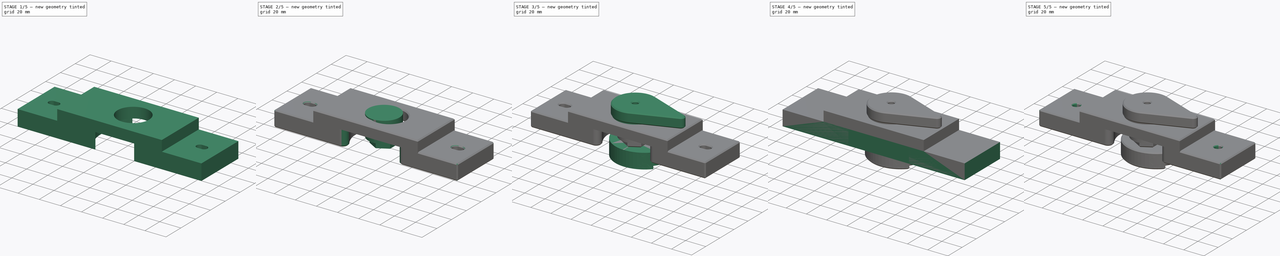
[diagram: build sequence overview — one tinted view per stage of 5, left to right]
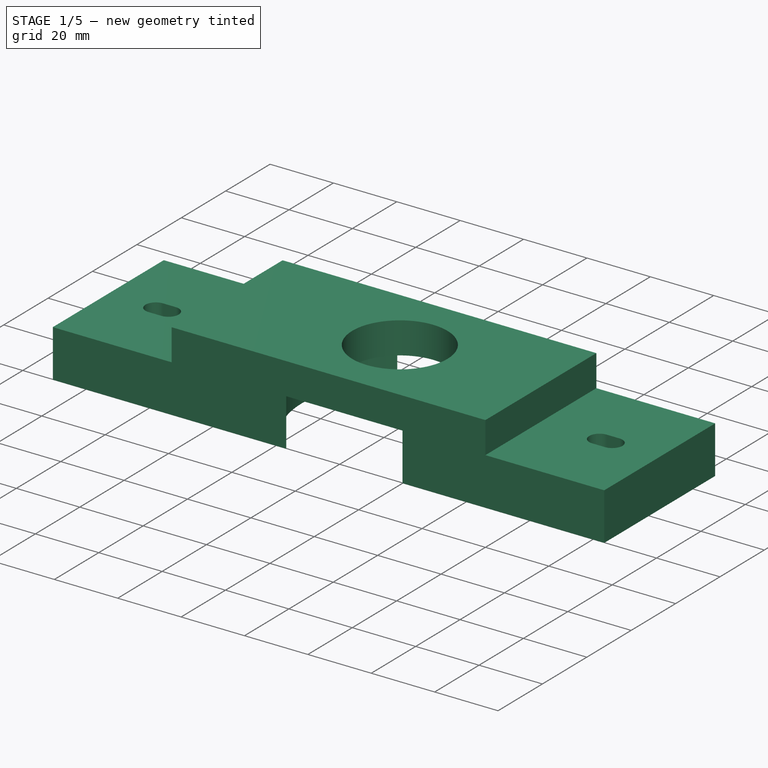
[diagram: stage 1 of 5 — iso view after this stage's code; geometry added in this stage tinted green]
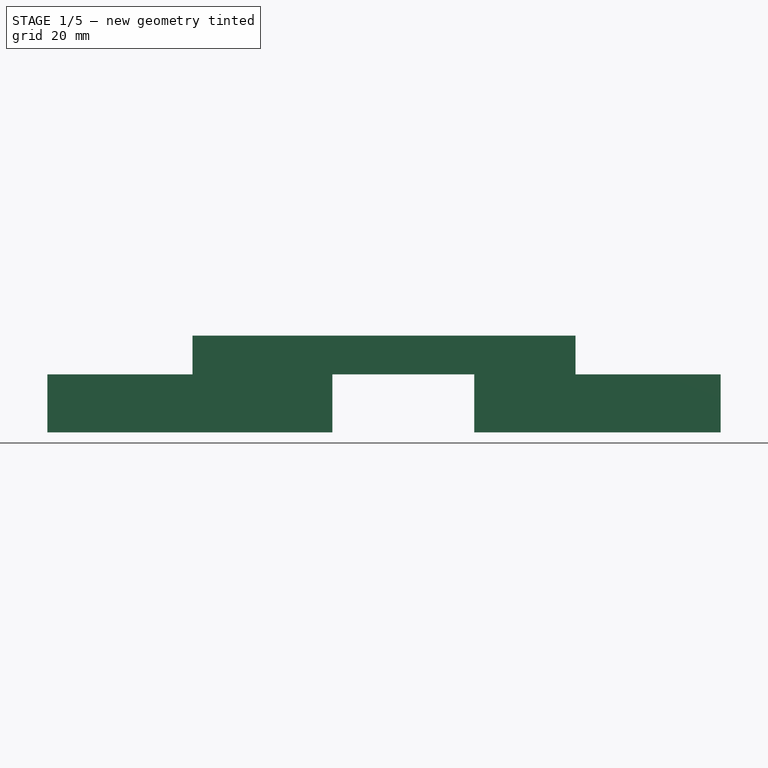
[diagram: stage 1 of 5 — front view after this stage's code; geometry added in this stage tinted green]
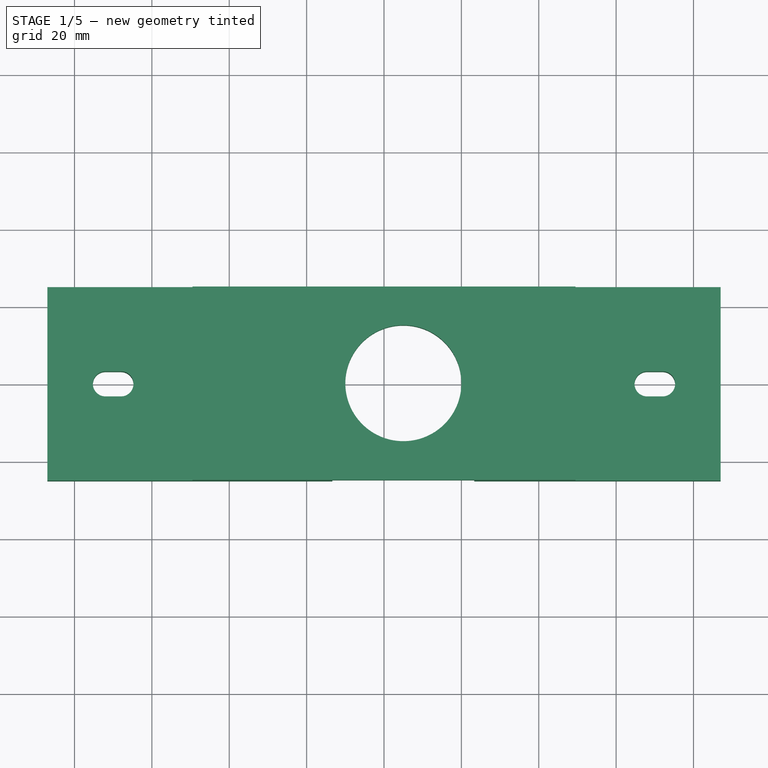
[diagram: stage 1 of 5 — top view after this stage's code; geometry added in this stage tinted green]
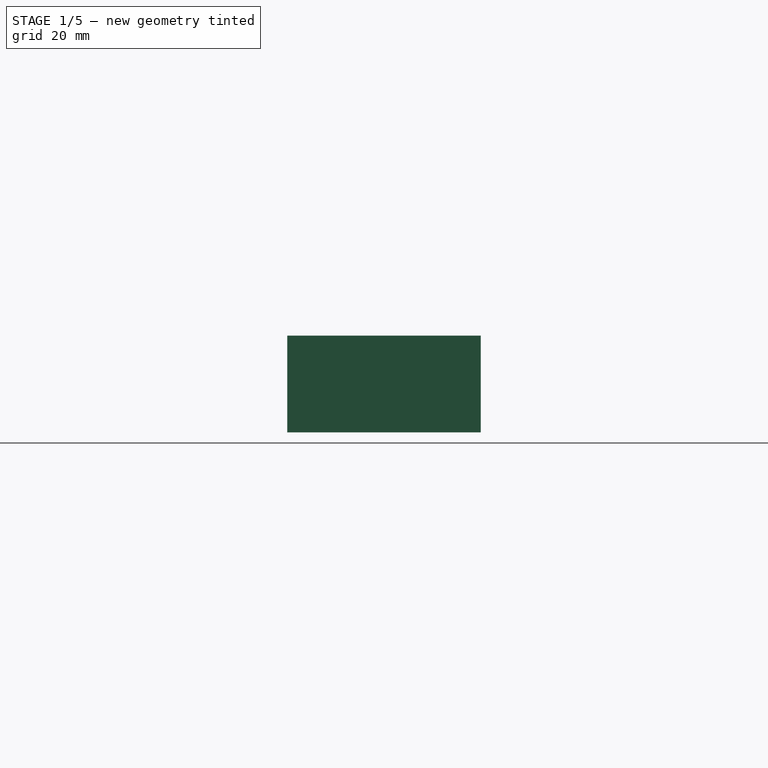
[diagram: stage 1 of 5 — right view after this stage's code; geometry added in this stage tinted green]
FCSTD DOCUMENT  (FreeCAD 0.22R36117 (Git))
Label: tenoning jig 2
License: All rights reserved
LicenseURL: http://en.wikipedia.org/wiki/All_rights_reserved
objects: Sketcher::SketchObject×24, PartDesign::Pocket×11, PartDesign::Pad×9, PartDesign::Chamfer×4, PartDesign::Body×4, PartDesign::Fillet×2
note: 80 computed .brp shape members not serialized (recipe doc carries the construction recipe); baked Part::Feature solids carry a one-line shape summary decoded from their .brp

FEATURE [PartDesign::Body] Body002  label="lever"
  Group = -> [Sketch008,Pad003,Sketch009,Pad004,Sketch010,Pad005,Sketch011,Pocket004,Chamfer001,Sketch025,Pad012]
  Origin = -> Origin002
  Placement = pos=(0,12,0) rot=(0,0,1;0rad)
  Tip = -> Pad012
FEATURE [Sketcher::SketchObject] Sketch026  label="base001"
  FullyConstrained = true
  MapMode = 5
  Support = -> [XY_Plane003]
  sketch-geometry (27):
    g0: LineSegment StartX=-90 StartY=125 StartZ=0 EndX=-90 EndY=-125 EndZ=0
    g1: LineSegment StartX=-90 StartY=-125 StartZ=0 EndX=90 EndY=-125 EndZ=0
    g2: LineSegment StartX=90 StartY=-125 StartZ=0 EndX=90 EndY=125 EndZ=0
    g3: LineSegment StartX=90 StartY=125 StartZ=0 EndX=-90 EndY=125 EndZ=0
    g4: LineSegment StartX=-50 StartY=85 StartZ=0 EndX=-50 EndY=-85 EndZ=0
    g5: LineSegment StartX=-50 StartY=-85 StartZ=0 EndX=50 EndY=-85 EndZ=0
    g6: LineSegment StartX=50 StartY=-85 StartZ=0 EndX=50 EndY=85 EndZ=0
    g7: LineSegment StartX=50 StartY=85 StartZ=0 EndX=-50 EndY=85 EndZ=0
    g8: LineSegment StartX=66.7 StartY=40 StartZ=0 EndX=66.7 EndY=-85 EndZ=0
    g9: LineSegment StartX=66.7 StartY=-85 StartZ=0 EndX=73.3 EndY=-85 EndZ=0
    g10: LineSegment StartX=73.3 StartY=-85 StartZ=0 EndX=73.3 EndY=40 EndZ=0
    g11: LineSegment StartX=73.3 StartY=40 StartZ=0 EndX=66.7 EndY=40 EndZ=0
    g12: GeomPoint X=70 Y=-105 Z=0
    g13: GeomPoint X=70 Y=-85 Z=0
    g14: LineSegment StartX=-73.3 StartY=40 StartZ=0 EndX=-73.3 EndY=-85 EndZ=0
    g15: LineSegment StartX=-73.3 StartY=-85 StartZ=0 EndX=-66.7 EndY=-85 EndZ=0
    g16: LineSegment StartX=-66.7 StartY=-85 StartZ=0 EndX=-66.7 EndY=40 EndZ=0
    g17: LineSegment StartX=-66.7 StartY=40 StartZ=0 EndX=-73.3 EndY=40 EndZ=0
    g18: Circle CenterX=0 CenterY=-107 CenterZ=0 NormalX=0 NormalY=0 NormalZ=1 AngleXU=0 Radius=3.25
    g19: Circle CenterX=70 CenterY=105 CenterZ=0 NormalX=0 NormalY=0 NormalZ=1 AngleXU=0 Radius=3.25
    g20: Circle CenterX=-70 CenterY=105 CenterZ=0 NormalX=0 NormalY=0 NormalZ=1 AngleXU=0 Radius=3.25
    g21: Circle CenterX=70 CenterY=-105 CenterZ=0 NormalX=0 NormalY=0 NormalZ=1 AngleXU=0 Radius=3.25
    g22: Circle CenterX=-70 CenterY=-105 CenterZ=0 NormalX=0 NormalY=0 NormalZ=1 AngleXU=0 Radius=3.25
    g23: Circle CenterX=-50.8 CenterY=105 CenterZ=0 NormalX=0 NormalY=0 NormalZ=1 AngleXU=0 Radius=1.5875
    g24: Circle CenterX=50.8 CenterY=105 CenterZ=0 NormalX=0 NormalY=0 NormalZ=1 AngleXU=0 Radius=1.5875
    g25: Circle CenterX=-50.8 CenterY=-105 CenterZ=0 NormalX=0 NormalY=0 NormalZ=1 AngleXU=0 Radius=1.5875
    g26: Circle CenterX=50.8 CenterY=-105 CenterZ=0 NormalX=0 NormalY=0 NormalZ=1 AngleXU=0 Radius=1.5875
  constraints (68):
    c: Coincident(g0,g1)
    c: Coincident(g1,g2)
    c: Coincident(g2,g3)
    c: Coincident(g3,g0)
    c: Vertical(g0)
    c: Vertical(g2)
    c: Horizontal(g1)
    c: Horizontal(g3)
    c: DistanceX(g3,g3) = 180
    c: DistanceY(g2,g2) = 250
    c: Symmetric(g0,g2,g-1)
    c: Coincident(g4,g5)
    c: Coincident(g5,g6)
    c: Coincident(g6,g7)
    c: Coincident(g7,g4)
    c: Vertical(g4)
    c: Vertical(g6)
    c: Horizontal(g5)
    c: Horizontal(g7)
    c: DistanceX(g7,g7) = 100
    c: DistanceY(g6,g6) = 170
    c: Symmetric(g4,g6,g-1)
    c: Coincident(g8,g9)
    c: Coincident(g9,g10)
    c: Coincident(g10,g11)
    c: Coincident(g11,g8)
    c: Vertical(g8)
    c: Vertical(g10)
    c: Horizontal(g9)
    c: Horizontal(g11)
    c: DistanceX(g9,g9) = 6.6
    c: Horizontal(g8,g5)
    c: Symmetric(g5,g1,g12)
    c: Symmetric(g8,g9,g13)
    c: Vertical(g13,g12)
    c: DistanceY(g-1,g8) = 40
    c: Coincident(g14,g15)
    c: Coincident(g15,g16)
    c: Coincident(g16,g17)
    c: Coincident(g17,g14)
    c: Vertical(g14)
    c: Vertical(g16)
    c: Horizontal(g15)
    c: Horizontal(g17)
    c: Equal(g15,g11)
    c: Symmetric(g16,g8,g-2)
    c: Equal(g16,g8)
    c: PointOnObject(g18,g-2)
    c: Diameter(g18) = 6.5
    c: DistanceY(g1,g18) = 18
    c: Coincident(g21,g12)
    c: Diameter(g20) = 6.5
    c: Equal(g20,g19)
    c: Equal(g19,g21)
    c: Equal(g21,g22)
    c: Symmetric(g0,g4,g22)
    c: Symmetric(g0,g4,g20)
    c: Symmetric(g2,g6,g19)
    c: Equal(g23,g24)
    c: Diameter(g23) = 3.175
    c: Symmetric(g23,g24,g-2)
    c: DistanceX(g23,g24) = 101.6
    c: Equal(g24,g25)
    c: Equal(g25,g26)
    c: Symmetric(g25,g26,g-2)
    c: Vertical(g25,g23)
    c: Horizontal(g20,g23)
    c: Horizontal(g25,g22)
FEATURE [Sketcher::SketchObject] Sketch027  label="riser001"
  ExternalGeometry = -> [Sketch026]
  FullyConstrained = true
  MapMode = 5
  Support = -> [XY_Plane003]
  sketch-geometry (8):
    g0: LineSegment StartX=-90 StartY=125 StartZ=0 EndX=-90 EndY=85 EndZ=0
    g1: LineSegment StartX=-90 StartY=85 StartZ=0 EndX=90 EndY=85 EndZ=0
    g2: LineSegment StartX=90 StartY=85 StartZ=0 EndX=90 EndY=125 EndZ=0
    g3: LineSegment StartX=90 StartY=125 StartZ=0 EndX=-90 EndY=125 EndZ=0
    g4: Circle CenterX=-70 CenterY=105 CenterZ=0 NormalX=0 NormalY=0 NormalZ=1 AngleXU=0 Radius=3.25
    g5: Circle CenterX=70 CenterY=105 CenterZ=0 NormalX=0 NormalY=0 NormalZ=1 AngleXU=0 Radius=3.25
    g6: Circle CenterX=-50.8 CenterY=105 CenterZ=0 NormalX=0 NormalY=0 NormalZ=1 AngleXU=0 Radius=1.5875
    g7: Circle CenterX=50.8 CenterY=105 CenterZ=0 NormalX=0 NormalY=0 NormalZ=1 AngleXU=0 Radius=1.5875
  constraints (18):
    c: Coincident(g0,g1)
    c: Coincident(g1,g2)
    c: Coincident(g2,g3)
    c: Coincident(g3,g0)
    c: Vertical(g0)
    c: Vertical(g2)
    c: Horizontal(g1)
    c: Coincident(g2,g-3)
    c: Horizontal(g-4,g1)
    c: Coincident(g0,g-3)
    c: Equal(g4,g-6)
    c: Equal(g4,g5)
    c: Coincident(g4,g-6)
    c: Coincident(g5,g-5)
    c: Equal(g7,g-8)
    c: Equal(g6,g-7)
    c: Symmetric(g6,g7,g-2)
    c: Coincident(g6,g-7)
FEATURE [Sketcher::SketchObject] Sketch028
  ExternalGeometry = -> [Sketch026]
  FullyConstrained = true
  MapMode = 5
  Support = -> [XY_Plane003]
  sketch-geometry (4):
    g0: LineSegment StartX=-87 StartY=25 StartZ=0 EndX=-87 EndY=-25 EndZ=0
    g1: LineSegment StartX=-87 StartY=-25 StartZ=0 EndX=87 EndY=-25 EndZ=0
    g2: LineSegment StartX=87 StartY=-25 StartZ=0 EndX=87 EndY=25 EndZ=0
    g3: LineSegment StartX=87 StartY=25 StartZ=0 EndX=-87 EndY=25 EndZ=0
  constraints (11):
    c: Coincident(g0,g1)
    c: Coincident(g1,g2)
    c: Coincident(g2,g3)
    c: Coincident(g3,g0)
    c: Vertical(g0)
    c: Vertical(g2)
    c: Horizontal(g1)
    c: Horizontal(g3)
    c: Symmetric(g0,g2,g-1)
    c: DistanceY(g2,g2) = 50
    c: DistanceX(g1,g1) = 174
FEATURE [PartDesign::Pad] Pad013
  Direction = (0,0,1)
  Length = 15
  Length2 = 10
  Profile = -> Sketch028
  ReferenceAxis = -> Sketch028 [N_Axis]
  Suppressed = false
  Type = 0
FEATURE [Sketcher::SketchObject] Sketch029
  ExternalGeometry = -> [Sketch026,Pad013]
  FullyConstrained = true
  MapMode = 5
  Placement = pos=(0,0,15) rot=(0,0,1;0rad)
  Support = -> [Pad013]
  sketch-geometry (4):
    g0: LineSegment StartX=-49.5 StartY=25 StartZ=0 EndX=-49.5 EndY=-25 EndZ=0
    g1: LineSegment StartX=-49.5 StartY=-25 StartZ=0 EndX=49.5 EndY=-25 EndZ=0
    g2: LineSegment StartX=49.5 StartY=-25 StartZ=0 EndX=49.5 EndY=25 EndZ=0
    g3: LineSegment StartX=49.5 StartY=25 StartZ=0 EndX=-49.5 EndY=25 EndZ=0
  constraints (11):
    c: Coincident(g0,g1)
    c: Coincident(g1,g2)
    c: Coincident(g2,g3)
    c: Coincident(g3,g0)
    c: Vertical(g0)
    c: Vertical(g2)
    c: Horizontal(g1)
    c: Horizontal(g3)
    c: Horizontal(g-4,g0)
    c: Symmetric(g2,g0,g-1)
    c: DistanceX(g-3,g0) = 0.5
FEATURE [PartDesign::Pad] Pad014
  BaseFeature = -> Pad013
  Direction = (0,0,1)
  Length = 10
  Length2 = 10
  Profile = -> Sketch029
  ReferenceAxis = -> Sketch029 [N_Axis]
  Suppressed = false
  Type = 0
FEATURE [Sketcher::SketchObject] Sketch030
  FullyConstrained = true
  MapMode = 5
  Placement = pos=(0,0,25) rot=(0,0,1;0rad)
  Support = -> [Pad014]
  sketch-geometry (2):
    g0: Circle CenterX=5 CenterY=0 CenterZ=0 NormalX=0 NormalY=0 NormalZ=1 AngleXU=0 Radius=15
    g1: Circle CenterX=5 CenterY=0 CenterZ=0 NormalX=0 NormalY=0 NormalZ=1 AngleXU=0 Radius=31
  constraints (5):
    c: Diameter(g0) = 30
    c: Coincident(g1,g0)
    c: Diameter(g1) = 62
    c: DistanceY(g-1,g0) = 0
    c: DistanceX(g-1,g0) = 5
FEATURE [PartDesign::Pocket] Pocket011
  BaseFeature = -> Pad014
  Direction = (0,0,-1)
  Length = 5
  Length2 = 5
  Profile = -> Sketch030
  ReferenceAxis = -> Sketch030 [N_Axis]
  Suppressed = false
  Type = 1
FEATURE [Sketcher::SketchObject] Sketch031
  ExternalGeometry = -> [Pocket011]
  FullyConstrained = true
  MapMode = 5
  Placement = pos=(0,0,0) rot=(1,0,0;3.14159rad)
  Support = -> [Pocket011]
  sketch-geometry (1):
    g0: Circle CenterX=5 CenterY=0 CenterZ=0 NormalX=0 NormalY=0 NormalZ=1 AngleXU=0 Radius=31
  constraints (2):
    c: Coincident(g0,g-3)
    c: Diameter(g0) = 62
FEATURE [PartDesign::Pocket] Pocket012
  BaseFeature = -> Pocket011
  Direction = (0,0,1)
  Length = 15
  Length2 = 5
  Profile = -> Sketch031
  ReferenceAxis = -> Sketch031 [N_Axis]
  Suppressed = false
  Type = 0
FEATURE [Sketcher::SketchObject] Sketch032
  ExternalGeometry = -> [Sketch026]
  FullyConstrained = true
  MapMode = 5
  Placement = pos=(0,0,15) rot=(0,0,1;0rad)
  Support = -> [Pocket012]
  sketch-geometry (10):
    g0: GeomPoint X=70 Y=40 Z=0
    g1: ArcOfCircle CenterX=-72 CenterY=1e-16 CenterZ=0 NormalX=0 NormalY=0 NormalZ=1 AngleXU=0 Radius=3.25 StartAngle=1.5708 EndAngle=4.71239
    g2: ArcOfCircle CenterX=-68 CenterY=0 CenterZ=0 NormalX=0 NormalY=0 NormalZ=1 AngleXU=0 Radius=3.25 StartAngle=4.71239 EndAngle=7.85398
    g3: LineSegment StartX=-72 StartY=3.25 StartZ=0 EndX=-68 EndY=3.25 EndZ=0
    g4: LineSegment StartX=-72 StartY=-3.25 StartZ=0 EndX=-68 EndY=-3.25 EndZ=0
    g5: ArcOfCircle CenterX=68 CenterY=0 CenterZ=0 NormalX=0 NormalY=0 NormalZ=1 AngleXU=0 Radius=3.25 StartAngle=1.5708 EndAngle=4.71239
    g6: ArcOfCircle CenterX=72 CenterY=0 CenterZ=0 NormalX=0 NormalY=0 NormalZ=1 AngleXU=0 Radius=3.25 StartAngle=4.71239 EndAngle=7.85398
    g7: LineSegment StartX=68 StartY=3.25 StartZ=0 EndX=72 EndY=3.25 EndZ=0
    g8: LineSegment StartX=68 StartY=-3.25 StartZ=0 EndX=72 EndY=-3.25 EndZ=0
    g9: GeomPoint X=70 Y=0 Z=0
  constraints (21):
    c: Symmetric(g-3,g-3,g0)
    c: Tangent(g1,g3) = 1.5708
    c: Tangent(g1,g4) = -1.5708
    c: Tangent(g2,g3) = 1.5708
    c: Tangent(g2,g4) = -1.5708
    c: Equal(g1,g2)
    c: Horizontal(g3)
    c: Tangent(g5,g7) = 1.5708
    c: Tangent(g5,g8) = -1.5708
    c: Tangent(g6,g7) = 1.5708
    c: Tangent(g6,g8) = -1.5708
    c: Equal(g5,g6)
    c: Horizontal(g7)
    c: Equal(g4,g8)
    c: Equal(g5,g2)
    c: Diameter(g5) = 6.5
    c: DistanceX(g4,g4) = 4
    c: Symmetric(g6,g5,g9)
    c: Vertical(g9,g0)
    c: Symmetric(g2,g5,g-2)
    c: PointOnObject(g6,g-1)
FEATURE [PartDesign::Pocket] Pocket013
  BaseFeature = -> Pocket012
  Direction = (0,0,-1)
  Length = 5
  Length2 = 5
  Profile = -> Sketch032
  ReferenceAxis = -> Sketch032 [N_Axis]
  Suppressed = false
  Type = 1
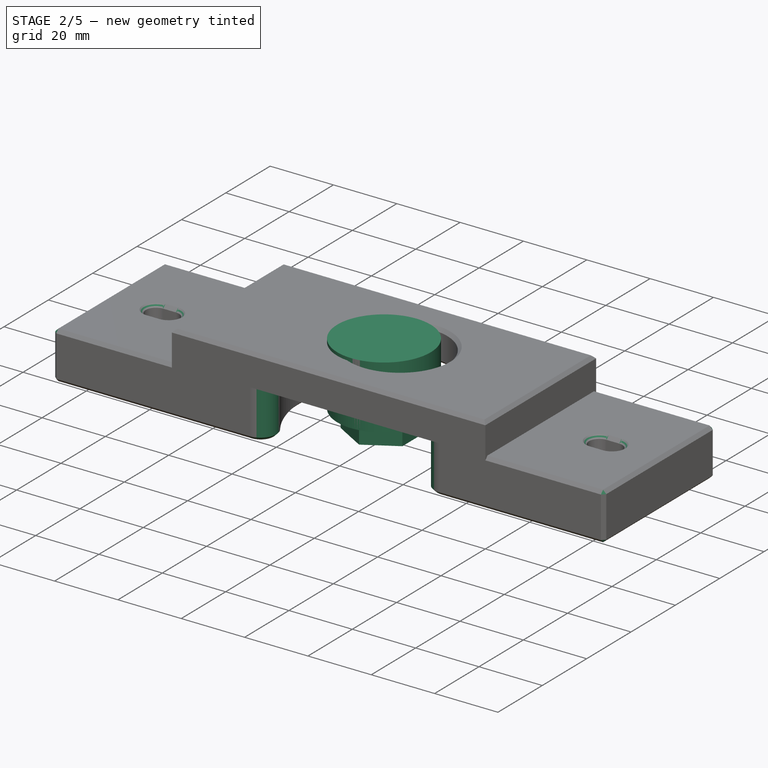
[diagram: stage 2 of 5 — iso view after this stage's code; geometry added in this stage tinted green]
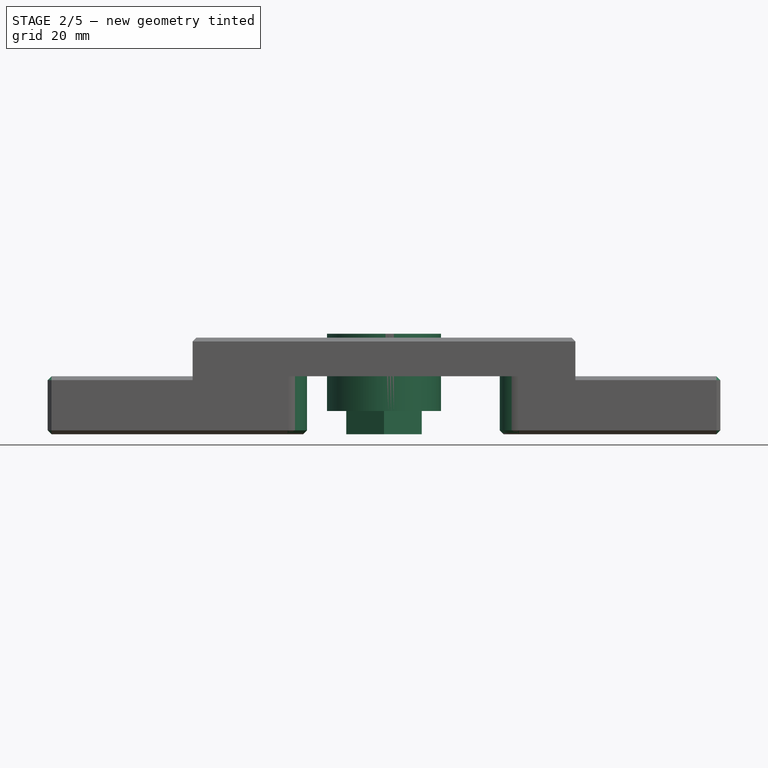
[diagram: stage 2 of 5 — front view after this stage's code; geometry added in this stage tinted green]
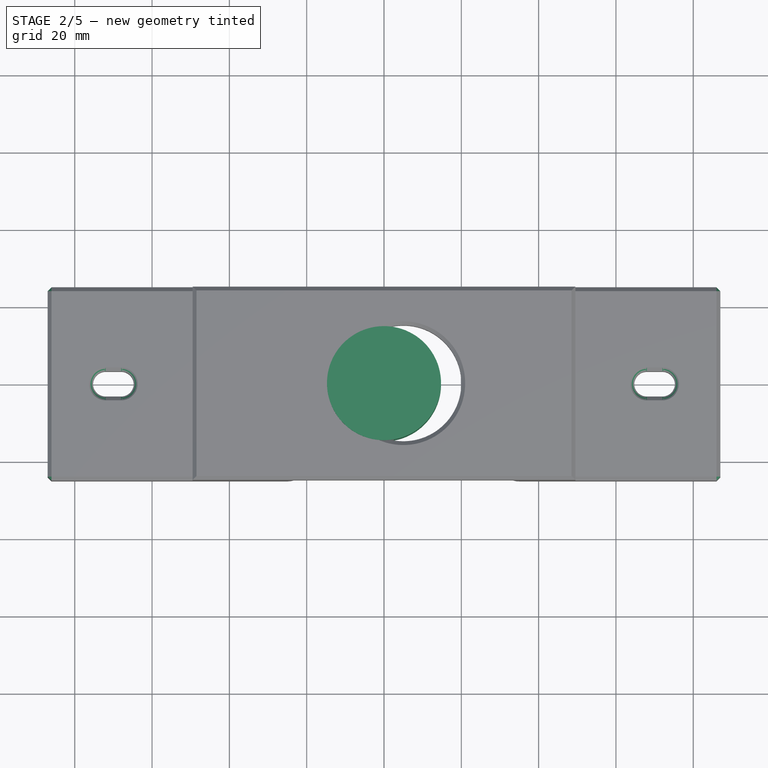
[diagram: stage 2 of 5 — top view after this stage's code; geometry added in this stage tinted green]
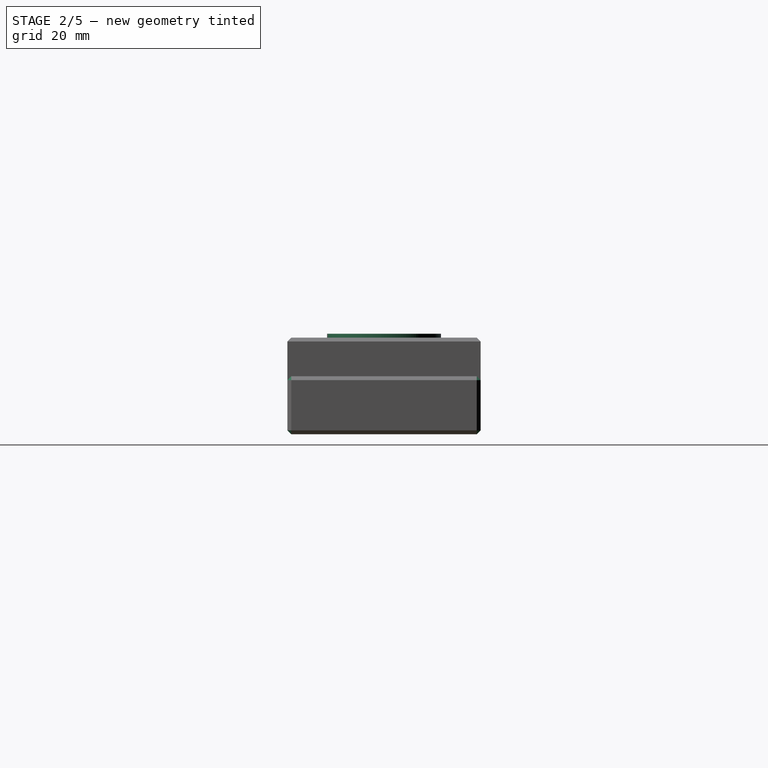
[diagram: stage 2 of 5 — right view after this stage's code; geometry added in this stage tinted green]
FEATURE [PartDesign::Body] Body  label="new carrier"
  Group = -> [Sketch,Sketch001,Sketch002,Pad,Sketch003,Pad001,Sketch004,Pocket,Sketch005,Pocket001,Sketch006,Pocket002,Sketch007,Pocket003,Fillet,Chamfer]
  Origin = -> Origin
  Tip = -> Chamfer
FEATURE [Sketcher::SketchObject] Sketch008
  FullyConstrained = true
  MapMode = 5
  Support = -> [XY_Plane002]
  sketch-geometry (7):
    g0: LineSegment StartX=0 StartY=-11.2583 StartZ=0 EndX=9.75 EndY=-5.62917 EndZ=0
    g1: LineSegment StartX=9.75 StartY=-5.62917 StartZ=0 EndX=9.75 EndY=5.62917 EndZ=0
    g2: LineSegment StartX=9.75 StartY=5.62917 StartZ=0 EndX=1.3e-15 EndY=11.2583 EndZ=0
    g3: LineSegment StartX=1.3e-15 StartY=11.2583 StartZ=0 EndX=-9.75 EndY=5.62917 EndZ=0
    g4: LineSegment StartX=-9.75 StartY=5.62917 StartZ=0 EndX=-9.75 EndY=-5.62917 EndZ=0
    g5: LineSegment StartX=-9.75 StartY=-5.62917 StartZ=0 EndX=2e-16 EndY=-11.2583 EndZ=0
    g6: Circle CenterX=0 CenterY=0 CenterZ=0 NormalX=0 NormalY=0 NormalZ=1 AngleXU=0 Radius=11.2583
  constraints (16):
    c: Coincident(g0,g1)
    c: Coincident(g1,g2)
    c: Coincident(g2,g3)
    c: Coincident(g3,g4)
    c: Coincident(g4,g5)
    c: Coincident(g5,g0)
    c: Equal(g0, g1-g5) x5
    c: PointOnObject(g0,g6)
    c: PointOnObject(g1,g6)
    c: PointOnObject(g2,g6)
    c: PointOnObject(g3,g6)
    c: PointOnObject(g4,g6)
    c: PointOnObject(g5,g6)
    c: Coincident(g6,g-1)
    c: PointOnObject(g5,g-2)
    c: DistanceX(g4,g0) = 19.5
FEATURE [PartDesign::Pad] Pad003
  Direction = (0,0,1)
  Length = 6
  Length2 = 10
  Profile = -> Sketch008
  ReferenceAxis = -> Sketch008 [N_Axis]
  Suppressed = false
  Type = 0
FEATURE [Sketcher::SketchObject] Sketch009
  FullyConstrained = true
  MapMode = 5
  Placement = pos=(0,0,6) rot=(0,0,1;0rad)
  Support = -> [Pad003]
  sketch-geometry (1):
    g0: Circle CenterX=0 CenterY=0 CenterZ=0 NormalX=0 NormalY=0 NormalZ=1 AngleXU=0 Radius=14.75
  constraints (2):
    c: Diameter(g0) = 29.5
    c: Coincident(g0,g-1)
FEATURE [PartDesign::Pad] Pad004
  BaseFeature = -> Pad003
  Direction = (0,0,1)
  Length = 20
  Length2 = 10
  Profile = -> Sketch009
  ReferenceAxis = -> Sketch009 [N_Axis]
  Suppressed = false
  Type = 0
FEATURE [Sketcher::SketchObject] Sketch033
  ExternalGeometry = -> [Pocket013]
  FullyConstrained = true
  MapMode = 5
  Placement = pos=(0,0,0) rot=(1,0,0;3.14159rad)
  Support = -> [Pocket013]
  sketch-geometry (32):
    g0: LineSegment StartX=-65.3605 StartY=-4e-16 StartZ=0 EndX=-68.6802 EndY=5.75 EndZ=0
    g1: LineSegment StartX=-68.6802 StartY=5.75 StartZ=0 EndX=-75.3198 EndY=5.75 EndZ=0
    g2: LineSegment StartX=-75.3198 StartY=5.75 StartZ=0 EndX=-78.6395 EndY=-1e-16 EndZ=0
    g3: LineSegment StartX=-78.6395 StartY=-2e-16 StartZ=0 EndX=-75.3198 EndY=-5.75 EndZ=0
    g4: LineSegment StartX=-75.3198 StartY=-5.75 StartZ=0 EndX=-68.6802 EndY=-5.75 EndZ=0
    g5: LineSegment StartX=-68.6802 StartY=-5.75 StartZ=0 EndX=-65.3605 EndY=0 EndZ=0
    g6: Circle CenterX=-72 CenterY=-1e-16 CenterZ=0 NormalX=0 NormalY=0 NormalZ=1 AngleXU=0 Radius=6.63953
    g7: LineSegment StartX=-61.3605 StartY=-9e-16 StartZ=0 EndX=-64.6802 EndY=5.75 EndZ=0
    g8: LineSegment StartX=-64.6802 StartY=5.75 StartZ=0 EndX=-71.3198 EndY=5.75 EndZ=0
    g9: LineSegment StartX=-71.3198 StartY=5.75 StartZ=0 EndX=-74.6395 EndY=-1e-16 EndZ=0
    g10: LineSegment StartX=-74.6395 StartY=-1e-16 StartZ=0 EndX=-71.3198 EndY=-5.75 EndZ=0
    g11: LineSegment StartX=-71.3198 StartY=-5.75 StartZ=0 EndX=-64.6802 EndY=-5.75 EndZ=0
    g12: LineSegment StartX=-64.6802 StartY=-5.75 StartZ=0 EndX=-61.3605 EndY=-9e-16 EndZ=0
    g13: Circle CenterX=-68 CenterY=-1e-16 CenterZ=0 NormalX=0 NormalY=0 NormalZ=1 AngleXU=0 Radius=6.63953
    g14: LineSegment StartX=74.6395 StartY=1e-16 StartZ=0 EndX=71.3198 EndY=5.75 EndZ=0
    g15: LineSegment StartX=71.3198 StartY=5.75 StartZ=0 EndX=64.6802 EndY=5.75 EndZ=0
    g16: LineSegment StartX=64.6802 StartY=5.75 StartZ=0 EndX=61.3605 EndY=-6e-16 EndZ=0
    g17: LineSegment StartX=61.3605 StartY=-6e-16 StartZ=0 EndX=64.6802 EndY=-5.75 EndZ=0
    g18: LineSegment StartX=64.6802 StartY=-5.75 StartZ=0 EndX=71.3198 EndY=-5.75 EndZ=0
    g19: LineSegment StartX=71.3198 StartY=-5.75 StartZ=0 EndX=74.6395 EndY=1e-16 EndZ=0
    g20: Circle CenterX=68 CenterY=0 CenterZ=0 NormalX=0 NormalY=0 NormalZ=1 AngleXU=0 Radius=6.63953
    g21: LineSegment StartX=78.6395 StartY=-2e-16 StartZ=0 EndX=75.3198 EndY=5.75 EndZ=0
    g22: LineSegment StartX=75.3198 StartY=5.75 StartZ=0 EndX=68.6802 EndY=5.75 EndZ=0
    g23: LineSegment StartX=68.6802 StartY=5.75 StartZ=0 EndX=65.3605 EndY=0 EndZ=0
    g24: LineSegment StartX=65.3605 StartY=0 StartZ=0 EndX=68.6802 EndY=-5.75 EndZ=0
    g25: LineSegment StartX=68.6802 StartY=-5.75 StartZ=0 EndX=75.3198 EndY=-5.75 EndZ=0
    g26: LineSegment StartX=75.3198 StartY=-5.75 StartZ=0 EndX=78.6395 EndY=-2e-16 EndZ=0
    g27: Circle CenterX=72 CenterY=0 CenterZ=0 NormalX=0 NormalY=0 NormalZ=1 AngleXU=0 Radius=6.63953
    g28: LineSegment StartX=64.6802 StartY=5.75 StartZ=0 EndX=75.3198 EndY=5.75 EndZ=0
    g29: LineSegment StartX=75.3198 StartY=-5.75 StartZ=0 EndX=64.6802 EndY=-5.75 EndZ=0
    g30: LineSegment StartX=-64.6802 StartY=5.75 StartZ=0 EndX=-75.3198 EndY=5.75 EndZ=0
    g31: LineSegment StartX=-64.6802 StartY=-5.75 StartZ=0 EndX=-75.3198 EndY=-5.75 EndZ=0
  constraints (74):
    c: Coincident(g0,g1)
    c: Coincident(g1,g2)
    c: Coincident(g2,g3)
    c: Coincident(g3,g4)
    c: Coincident(g4,g5)
    c: Coincident(g5,g0)
    c: Equal(g0, g1-g5) x5
    c: PointOnObject(g0,g6)
    c: PointOnObject(g1,g6)
    c: PointOnObject(g2,g6)
    c: PointOnObject(g3,g6)
    c: PointOnObject(g4,g6)
    c: PointOnObject(g5,g6)
    c: Coincident(g7,g8)
    c: Coincident(g8,g9)
    c: Coincident(g9,g10)
    c: Coincident(g10,g11)
    c: Coincident(g11,g12)
    c: Coincident(g12,g7)
    c: Equal(g7, g8-g12) x5
    c: PointOnObject(g7,g13)
    c: PointOnObject(g8,g13)
    c: PointOnObject(g9,g13)
    c: PointOnObject(g10,g13)
    c: PointOnObject(g11,g13)
    c: PointOnObject(g12,g13)
    c: Horizontal(g8)
    c: Horizontal(g1)
    c: Horizontal(g0,g8)
    c: Equal(g6,g13)
    c: DistanceY(g3,g1) = 11.5
    c: DistanceX(g6,g13) = 4
    c: Coincident(g14,g15)
    c: Coincident(g15,g16)
    c: Coincident(g16,g17)
    c: Coincident(g17,g18)
    c: Coincident(g18,g19)
    c: Coincident(g19,g14)
    c: Equal(g14, g15-g19) x5
    c: PointOnObject(g14,g20)
    c: PointOnObject(g15,g20)
    c: PointOnObject(g16,g20)
    c: PointOnObject(g17,g20)
    c: PointOnObject(g18,g20)
    c: PointOnObject(g19,g20)
    c: Coincident(g21,g22)
    c: Coincident(g22,g23)
    c: Coincident(g23,g24)
    c: Coincident(g24,g25)
    c: Coincident(g25,g26)
    c: Coincident(g26,g21)
    c: Equal(g21, g22-g26) x5
    c: PointOnObject(g21,g27)
    c: PointOnObject(g22,g27)
    c: PointOnObject(g23,g27)
    c: PointOnObject(g24,g27)
    c: PointOnObject(g25,g27)
    c: PointOnObject(g26,g27)
    c: Horizontal(g22)
    c: Horizontal(g15)
    c: Horizontal(g14,g22)
    c: Equal(g20,g27)
    c: DistanceY(g17,g15) = 11.5
    c: DistanceX(g20,g27) = 4
    c: Coincident(g6,g-3)
    c: Coincident(g27,g-4)
    c: Coincident(g28,g16)
    c: Coincident(g28,g21)
    c: Coincident(g29,g26)
    c: Coincident(g29,g17)
    c: Coincident(g30,g7)
    c: Coincident(g30,g2)
    c: Coincident(g31,g12)
    c: Coincident(g31,g3)
FEATURE [PartDesign::Pocket] Pocket014
  BaseFeature = -> Pocket013
  Direction = (0,0,1)
  Length = 5
  Length2 = 5
  Profile = -> Sketch033
  ReferenceAxis = -> Sketch033 [N_Axis]
  Suppressed = false
  Type = 0
FEATURE [PartDesign::Fillet] Fillet001
  Base = -> Pocket014 [Edge60,Edge70,Edge10,Edge8]
  BaseFeature = -> Pocket014
  Radius = 5
  Refine = true
  SupportTransform = false
  Suppressed = false
  UseAllEdges = false
FEATURE [PartDesign::Chamfer] Chamfer003
  Angle = 45
  Base = -> Fillet001 [Face25,Face1,Edge27,Face22,Edge92,Edge33,Edge30,Edge17,Edge28,Edge89,Edge88,Edge86,Edge16,Edge18,Edge85,Edge87]
  BaseFeature = -> Fillet001
  ChamferType = 0
  FlipDirection = false
  Size = 1
  Size2 = 1
  SupportTransform = false
  Suppressed = false
  UseAllEdges = false
FEATURE [PartDesign::Body] Body003  label="new carrier v2"
  Group = -> [Sketch026,Sketch027,Sketch028,Pad013,Sketch029,Pad014,Sketch030,Pocket011,Sketch031,Pocket012,Sketch032,Pocket013,Sketch033,Pocket014,Fillet001,Chamfer003]
  Origin = -> Origin003
  Tip = -> Chamfer003
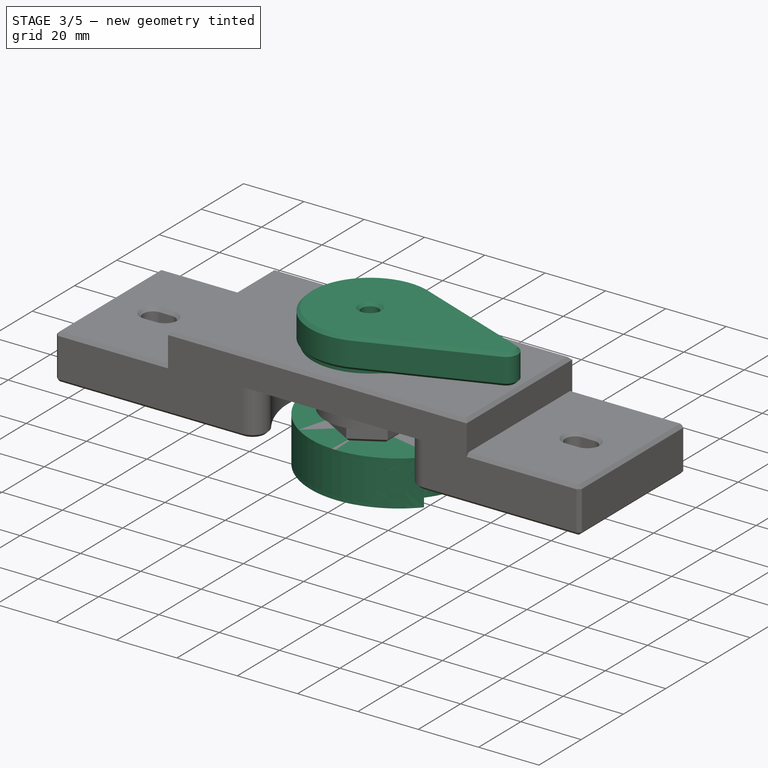
[diagram: stage 3 of 5 — iso view after this stage's code; geometry added in this stage tinted green]
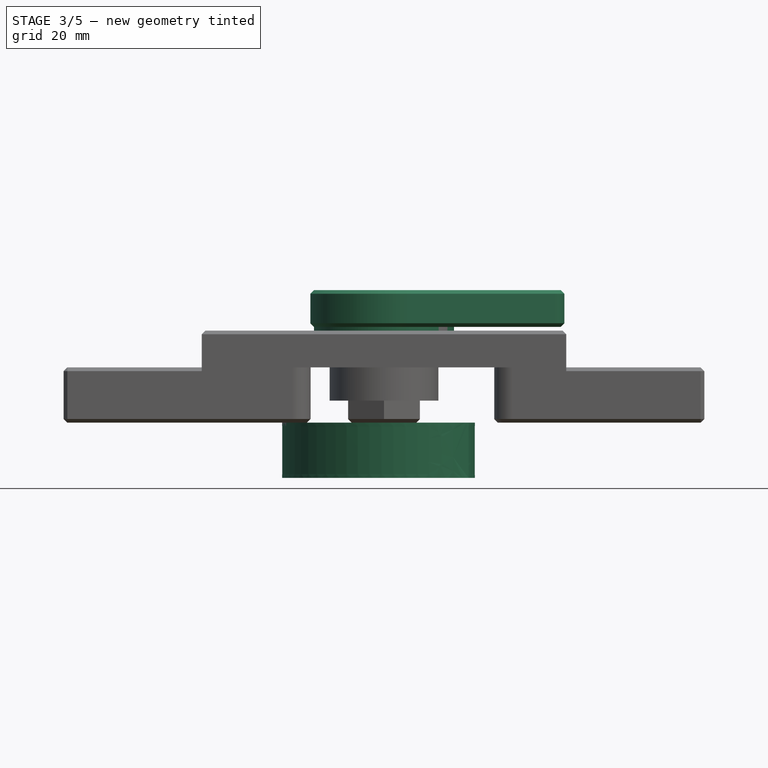
[diagram: stage 3 of 5 — front view after this stage's code; geometry added in this stage tinted green]
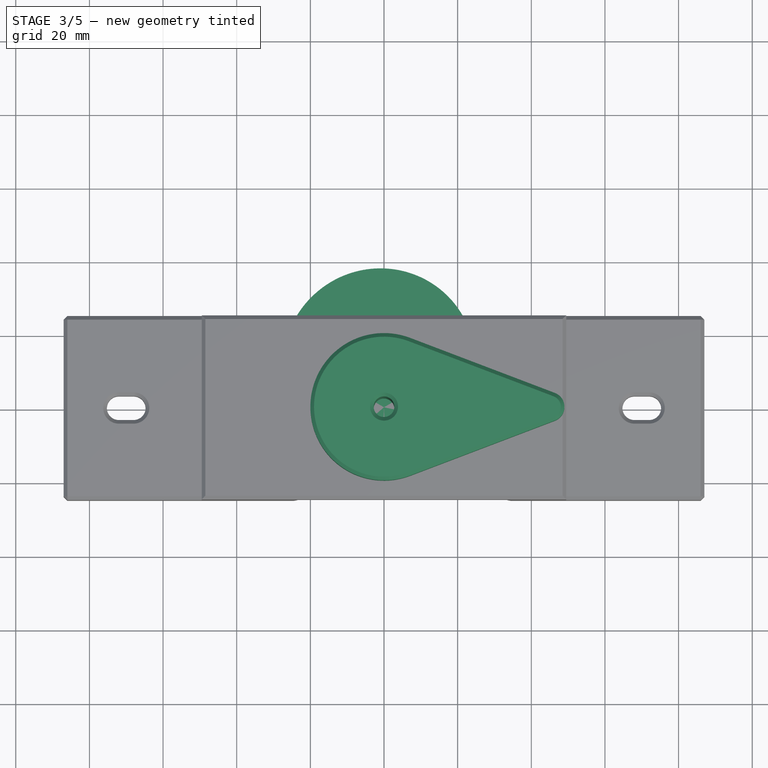
[diagram: stage 3 of 5 — top view after this stage's code; geometry added in this stage tinted green]
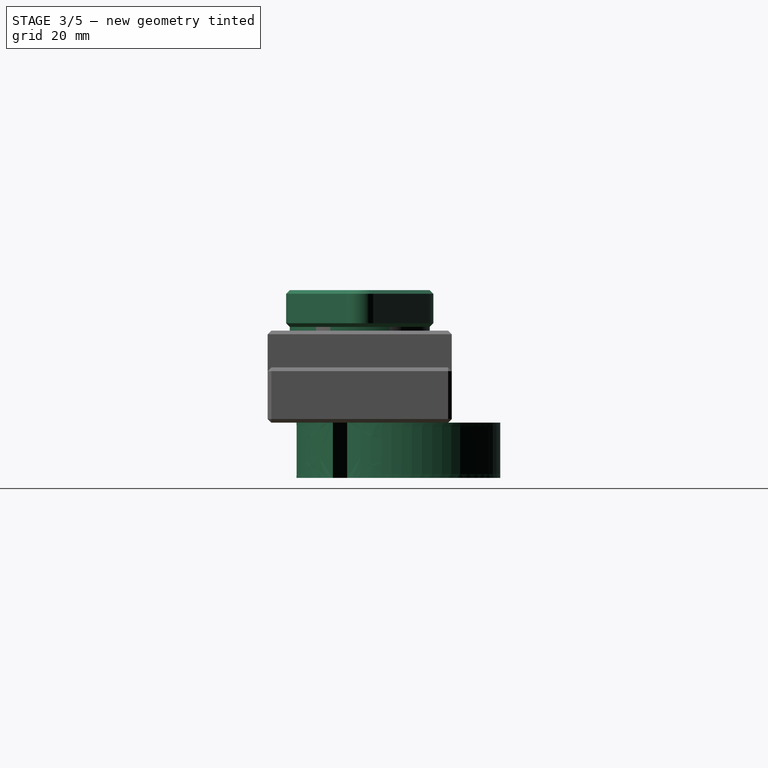
[diagram: stage 3 of 5 — right view after this stage's code; geometry added in this stage tinted green]
FEATURE [Sketcher::SketchObject] Sketch010
  FullyConstrained = true
  MapMode = 5
  Placement = pos=(0,0,26) rot=(0,0,1;0rad)
  Support = -> [Pad004]
  sketch-geometry (4):
    g0: ArcOfCircle CenterX=0 CenterY=0 CenterZ=0 NormalX=0 NormalY=0 NormalZ=1 AngleXU=0 Radius=20 StartAngle=1.20729 EndAngle=5.0759
    g1: ArcOfCircle CenterX=45 CenterY=0 CenterZ=0 NormalX=0 NormalY=0 NormalZ=1 AngleXU=0 Radius=4 StartAngle=5.0759 EndAngle=7.49047
    g2: LineSegment StartX=46.4222 StartY=3.73862 StartZ=0 EndX=7.11111 EndY=18.6931 EndZ=0
    g3: LineSegment StartX=46.4222 StartY=-3.73862 StartZ=0 EndX=7.11111 EndY=-18.6931 EndZ=0
  constraints (9):
    c: Coincident(g0,g-1)
    c: PointOnObject(g1,g-1)
    c: Tangent(g2,g0) = -1.5708
    c: Tangent(g3,g0) = 1.5708
    c: Tangent(g3,g1) = 1.5708
    c: Tangent(g2,g1) = -1.5708
    c: Diameter(g0) = 40
    c: DistanceX(g0,g1) = 45
    c: Diameter(g1) = 8
FEATURE [PartDesign::Pad] Pad005
  BaseFeature = -> Pad004
  Direction = (0,0,1)
  Length = 10
  Length2 = 10
  Profile = -> Sketch010
  ReferenceAxis = -> Sketch010 [N_Axis]
  Suppressed = false
  Type = 0
FEATURE [Sketcher::SketchObject] Sketch011
  FullyConstrained = true
  MapMode = 5
  Placement = pos=(0,0,36) rot=(0,0,1;0rad)
  Support = -> [Pad005]
  sketch-geometry (1):
    g0: Circle CenterX=0 CenterY=0 CenterZ=0 NormalX=0 NormalY=0 NormalZ=1 AngleXU=0 Radius=2.8
  constraints (2):
    c: Coincident(g0,g-1)
    c: Diameter(g0) = 5.6
FEATURE [PartDesign::Pocket] Pocket004
  BaseFeature = -> Pad005
  Direction = (0,0,-1)
  Length = 5
  Length2 = 5
  Profile = -> Sketch011
  ReferenceAxis = -> Sketch011 [N_Axis]
  Suppressed = false
  Type = 1
FEATURE [PartDesign::Chamfer] Chamfer001
  Angle = 45
  Base = -> Pocket004 [Face5,Edge6,Face10]
  BaseFeature = -> Pocket004
  ChamferType = 0
  FlipDirection = false
  Size = 1
  Size2 = 1
  SupportTransform = false
  Suppressed = false
  UseAllEdges = false
FEATURE [Sketcher::SketchObject] Sketch022
  FullyConstrained = false
  Placement = pos=(0,12,0) rot=(0,0,1;0rad)
  sketch-geometry (2):
    g0: BSplineCurve PolesCount=15 KnotsCount=2 Degree=14 IsPeriodic=0
    g1: LineSegment StartX=18.3851 StartY=-15.4269 StartZ=0 EndX=22.9813 EndY=-19.2836 EndZ=0
  constraints (2):
    c: Coincident(g1,g0)
    c: Coincident(g1,g0)
FEATURE [PartDesign::Pad] Pad011
  Direction = (0,0,1)
  Length = 15
  Length2 = 10
  Placement = pos=(0,12,0) rot=(0,0,1;0rad)
  Profile = -> Sketch022
  ReferenceAxis = -> Sketch022 [N_Axis]
  Reversed = true
  Suppressed = false
  Type = 0
FEATURE [Sketcher::SketchObject] Sketch023
  FullyConstrained = true
  MapMode = 5
  Placement = pos=(0,12,0) rot=(0,0,1;0rad)
  Support = -> [Pad011]
  sketch-geometry (7):
    g0: LineSegment StartX=1e-16 StartY=-11.547 StartZ=0 EndX=10 EndY=-5.7735 EndZ=0
    g1: LineSegment StartX=10 StartY=-5.7735 StartZ=0 EndX=10 EndY=5.7735 EndZ=0
    g2: LineSegment StartX=10 StartY=5.7735 StartZ=0 EndX=1.2e-15 EndY=11.547 EndZ=0
    g3: LineSegment StartX=1.2e-15 StartY=11.547 StartZ=0 EndX=-10 EndY=5.7735 EndZ=0
    g4: LineSegment StartX=-10 StartY=5.7735 StartZ=0 EndX=-10 EndY=-5.7735 EndZ=0
    g5: LineSegment StartX=-10 StartY=-5.7735 StartZ=0 EndX=1e-16 EndY=-11.547 EndZ=0
    g6: Circle CenterX=0 CenterY=0 CenterZ=0 NormalX=0 NormalY=0 NormalZ=1 AngleXU=0 Radius=11.547
  constraints (16):
    c: Coincident(g0,g1)
    c: Coincident(g1,g2)
    c: Coincident(g2,g3)
    c: Coincident(g3,g4)
    c: Coincident(g4,g5)
    c: Coincident(g5,g0)
    c: Equal(g0, g1-g5) x5
    c: PointOnObject(g0,g6)
    c: PointOnObject(g1,g6)
    c: PointOnObject(g2,g6)
    c: PointOnObject(g3,g6)
    c: PointOnObject(g4,g6)
    c: PointOnObject(g5,g6)
    c: PointOnObject(g5,g-2)
    c: Coincident(g-1,g6)
    c: DistanceX(g4,g0) = 20
FEATURE [PartDesign::Pocket] Pocket009
  BaseFeature = -> Pad011
  Direction = (0,0,-1)
  Length = 7
  Length2 = 5
  Placement = pos=(0,12,0) rot=(0,0,1;0rad)
  Profile = -> Sketch023
  ReferenceAxis = -> Sketch023 [N_Axis]
  Suppressed = false
  Type = 0
FEATURE [PartDesign::Body] Body001  label="new cam"
  Group = -> [Sketch022,Pad011,Sketch023,Pocket009,Sketch024,Pocket010,Chamfer002]
  Origin = -> Origin001
  Tip = -> Chamfer002
FEATURE [Sketcher::SketchObject] Sketch025
  ExternalGeometry = -> [Chamfer001]
  FullyConstrained = true
  MapMode = 5
  Placement = pos=(0,0,26) rot=(1,0,0;3.14159rad)
  Support = -> [Chamfer001]
  sketch-geometry (2):
    g0: Circle CenterX=0 CenterY=0 CenterZ=0 NormalX=0 NormalY=0 NormalZ=1 AngleXU=0 Radius=14.75
    g1: Circle CenterX=0 CenterY=0 CenterZ=0 NormalX=0 NormalY=0 NormalZ=1 AngleXU=0 Radius=19
  constraints (4):
    c: Coincident(g0,g-1)
    c: Coincident(g1,g0)
    c: Equal(g0,g-4)
    c: Equal(g1,g-3)
FEATURE [PartDesign::Pad] Pad012
  BaseFeature = -> Chamfer001
  Direction = (0,0,-1)
  Length = 10
  Length2 = 10
  Profile = -> Sketch025
  ReferenceAxis = -> Sketch025 [N_Axis]
  Suppressed = false
  Type = 0
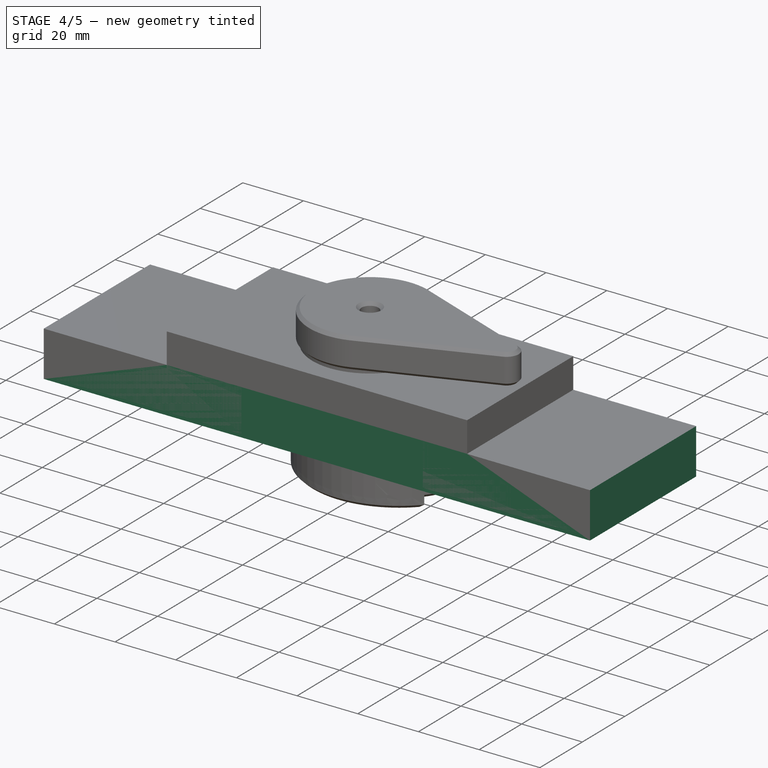
[diagram: stage 4 of 5 — iso view after this stage's code; geometry added in this stage tinted green]
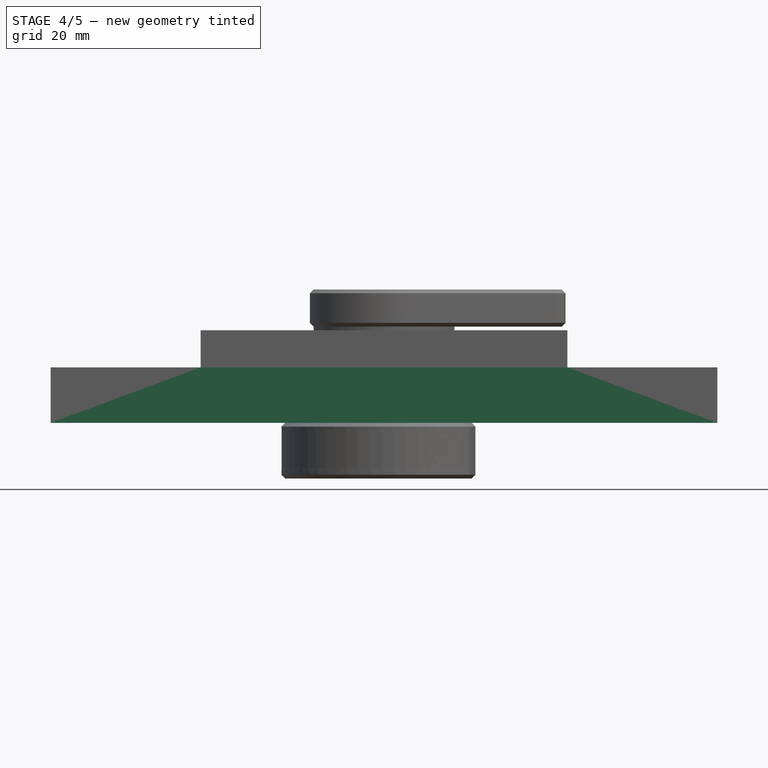
[diagram: stage 4 of 5 — front view after this stage's code; geometry added in this stage tinted green]
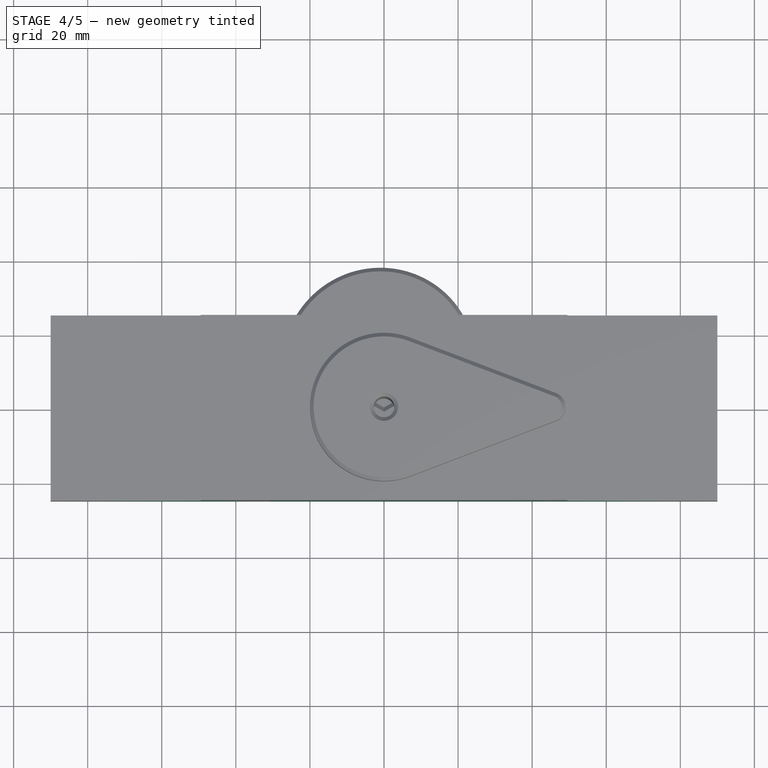
[diagram: stage 4 of 5 — top view after this stage's code; geometry added in this stage tinted green]
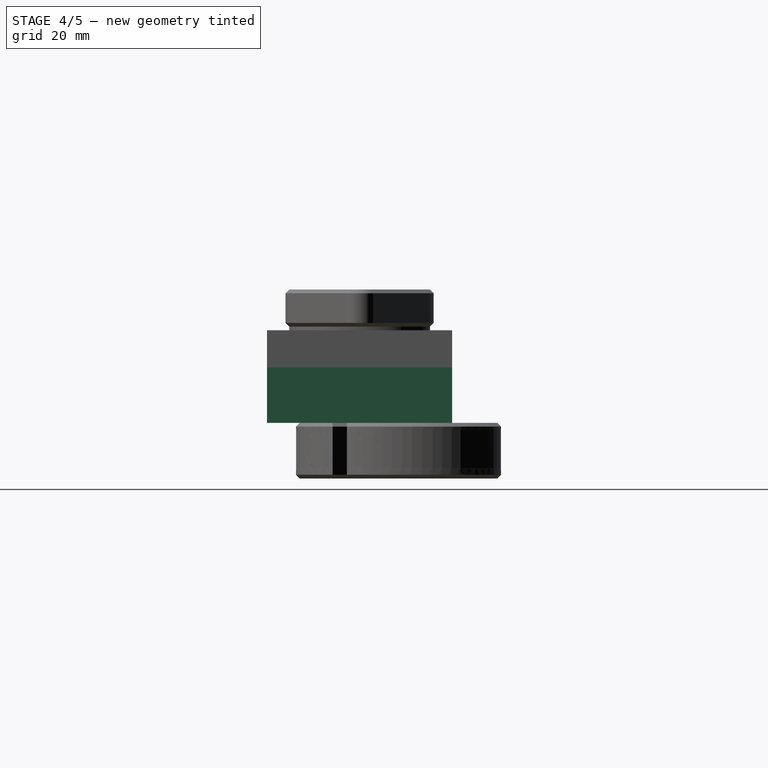
[diagram: stage 4 of 5 — right view after this stage's code; geometry added in this stage tinted green]
FEATURE [Sketcher::SketchObject] Sketch  label="base"
  FullyConstrained = true
  MapMode = 5
  Support = -> [XY_Plane]
  sketch-geometry (27):
    g0: LineSegment StartX=-90 StartY=125 StartZ=0 EndX=-90 EndY=-125 EndZ=0
    g1: LineSegment StartX=-90 StartY=-125 StartZ=0 EndX=90 EndY=-125 EndZ=0
    g2: LineSegment StartX=90 StartY=-125 StartZ=0 EndX=90 EndY=125 EndZ=0
    g3: LineSegment StartX=90 StartY=125 StartZ=0 EndX=-90 EndY=125 EndZ=0
    g4: LineSegment StartX=-50 StartY=85 StartZ=0 EndX=-50 EndY=-85 EndZ=0
    g5: LineSegment StartX=-50 StartY=-85 StartZ=0 EndX=50 EndY=-85 EndZ=0
    g6: LineSegment StartX=50 StartY=-85 StartZ=0 EndX=50 EndY=85 EndZ=0
    g7: LineSegment StartX=50 StartY=85 StartZ=0 EndX=-50 EndY=85 EndZ=0
    g8: LineSegment StartX=66.7 StartY=40 StartZ=0 EndX=66.7 EndY=-85 EndZ=0
    g9: LineSegment StartX=66.7 StartY=-85 StartZ=0 EndX=73.3 EndY=-85 EndZ=0
    g10: LineSegment StartX=73.3 StartY=-85 StartZ=0 EndX=73.3 EndY=40 EndZ=0
    g11: LineSegment StartX=73.3 StartY=40 StartZ=0 EndX=66.7 EndY=40 EndZ=0
    g12: GeomPoint X=70 Y=-105 Z=0
    g13: GeomPoint X=70 Y=-85 Z=0
    g14: LineSegment StartX=-73.3 StartY=40 StartZ=0 EndX=-73.3 EndY=-85 EndZ=0
    g15: LineSegment StartX=-73.3 StartY=-85 StartZ=0 EndX=-66.7 EndY=-85 EndZ=0
    g16: LineSegment StartX=-66.7 StartY=-85 StartZ=0 EndX=-66.7 EndY=40 EndZ=0
    g17: LineSegment StartX=-66.7 StartY=40 StartZ=0 EndX=-73.3 EndY=40 EndZ=0
    g18: Circle CenterX=0 CenterY=-107 CenterZ=0 NormalX=0 NormalY=0 NormalZ=1 AngleXU=0 Radius=3.25
    g19: Circle CenterX=70 CenterY=105 CenterZ=0 NormalX=0 NormalY=0 NormalZ=1 AngleXU=0 Radius=3.25
    g20: Circle CenterX=-70 CenterY=105 CenterZ=0 NormalX=0 NormalY=0 NormalZ=1 AngleXU=0 Radius=3.25
    g21: Circle CenterX=70 CenterY=-105 CenterZ=0 NormalX=0 NormalY=0 NormalZ=1 AngleXU=0 Radius=3.25
    g22: Circle CenterX=-70 CenterY=-105 CenterZ=0 NormalX=0 NormalY=0 NormalZ=1 AngleXU=0 Radius=3.25
    g23: Circle CenterX=-50.8 CenterY=105 CenterZ=0 NormalX=0 NormalY=0 NormalZ=1 AngleXU=0 Radius=1.5875
    g24: Circle CenterX=50.8 CenterY=105 CenterZ=0 NormalX=0 NormalY=0 NormalZ=1 AngleXU=0 Radius=1.5875
    g25: Circle CenterX=-50.8 CenterY=-105 CenterZ=0 NormalX=0 NormalY=0 NormalZ=1 AngleXU=0 Radius=1.5875
    g26: Circle CenterX=50.8 CenterY=-105 CenterZ=0 NormalX=0 NormalY=0 NormalZ=1 AngleXU=0 Radius=1.5875
  constraints (68):
    c: Coincident(g0,g1)
    c: Coincident(g1,g2)
    c: Coincident(g2,g3)
    c: Coincident(g3,g0)
    c: Vertical(g0)
    c: Vertical(g2)
    c: Horizontal(g1)
    c: Horizontal(g3)
    c: DistanceX(g3,g3) = 180
    c: DistanceY(g2,g2) = 250
    c: Symmetric(g0,g2,g-1)
    c: Coincident(g4,g5)
    c: Coincident(g5,g6)
    c: Coincident(g6,g7)
    c: Coincident(g7,g4)
    c: Vertical(g4)
    c: Vertical(g6)
    c: Horizontal(g5)
    c: Horizontal(g7)
    c: DistanceX(g7,g7) = 100
    c: DistanceY(g6,g6) = 170
    c: Symmetric(g4,g6,g-1)
    c: Coincident(g8,g9)
    c: Coincident(g9,g10)
    c: Coincident(g10,g11)
    c: Coincident(g11,g8)
    c: Vertical(g8)
    c: Vertical(g10)
    c: Horizontal(g9)
    c: Horizontal(g11)
    c: DistanceX(g9,g9) = 6.6
    c: Horizontal(g8,g5)
    c: Symmetric(g5,g1,g12)
    c: Symmetric(g8,g9,g13)
    c: Vertical(g13,g12)
    c: DistanceY(g-1,g8) = 40
    c: Coincident(g14,g15)
    c: Coincident(g15,g16)
    c: Coincident(g16,g17)
    c: Coincident(g17,g14)
    c: Vertical(g14)
    c: Vertical(g16)
    c: Horizontal(g15)
    c: Horizontal(g17)
    c: Equal(g15,g11)
    c: Symmetric(g16,g8,g-2)
    c: Equal(g16,g8)
    c: PointOnObject(g18,g-2)
    c: Diameter(g18) = 6.5
    c: DistanceY(g1,g18) = 18
    c: Coincident(g21,g12)
    c: Diameter(g20) = 6.5
    c: Equal(g20,g19)
    c: Equal(g19,g21)
    c: Equal(g21,g22)
    c: Symmetric(g0,g4,g22)
    c: Symmetric(g0,g4,g20)
    c: Symmetric(g2,g6,g19)
    c: Equal(g23,g24)
    c: Diameter(g23) = 3.175
    c: Symmetric(g23,g24,g-2)
    c: DistanceX(g23,g24) = 101.6
    c: Equal(g24,g25)
    c: Equal(g25,g26)
    c: Symmetric(g25,g26,g-2)
    c: Vertical(g25,g23)
    c: Horizontal(g20,g23)
    c: Horizontal(g25,g22)
FEATURE [Sketcher::SketchObject] Sketch001  label="riser"
  ExternalGeometry = -> [Sketch]
  FullyConstrained = true
  MapMode = 5
  Support = -> [XY_Plane]
  sketch-geometry (8):
    g0: LineSegment StartX=-90 StartY=125 StartZ=0 EndX=-90 EndY=85 EndZ=0
    g1: LineSegment StartX=-90 StartY=85 StartZ=0 EndX=90 EndY=85 EndZ=0
    g2: LineSegment StartX=90 StartY=85 StartZ=0 EndX=90 EndY=125 EndZ=0
    g3: LineSegment StartX=90 StartY=125 StartZ=0 EndX=-90 EndY=125 EndZ=0
    g4: Circle CenterX=-70 CenterY=105 CenterZ=0 NormalX=0 NormalY=0 NormalZ=1 AngleXU=0 Radius=3.25
    g5: Circle CenterX=70 CenterY=105 CenterZ=0 NormalX=0 NormalY=0 NormalZ=1 AngleXU=0 Radius=3.25
    g6: Circle CenterX=-50.8 CenterY=105 CenterZ=0 NormalX=0 NormalY=0 NormalZ=1 AngleXU=0 Radius=1.5875
    g7: Circle CenterX=50.8 CenterY=105 CenterZ=0 NormalX=0 NormalY=0 NormalZ=1 AngleXU=0 Radius=1.5875
  constraints (18):
    c: Coincident(g0,g1)
    c: Coincident(g1,g2)
    c: Coincident(g2,g3)
    c: Coincident(g3,g0)
    c: Vertical(g0)
    c: Vertical(g2)
    c: Horizontal(g1)
    c: Coincident(g2,g-3)
    c: Horizontal(g-4,g1)
    c: Coincident(g0,g-3)
    c: Equal(g4,g-6)
    c: Equal(g4,g5)
    c: Coincident(g4,g-6)
    c: Coincident(g5,g-5)
    c: Equal(g7,g-8)
    c: Equal(g6,g-7)
    c: Symmetric(g6,g7,g-2)
    c: Coincident(g6,g-7)
FEATURE [Sketcher::SketchObject] Sketch002
  ExternalGeometry = -> [Sketch]
  FullyConstrained = true
  MapMode = 5
  Support = -> [XY_Plane]
  sketch-geometry (4):
    g0: LineSegment StartX=-90 StartY=25 StartZ=0 EndX=-90 EndY=-25 EndZ=0
    g1: LineSegment StartX=-90 StartY=-25 StartZ=0 EndX=90 EndY=-25 EndZ=0
    g2: LineSegment StartX=90 StartY=-25 StartZ=0 EndX=90 EndY=25 EndZ=0
    g3: LineSegment StartX=90 StartY=25 StartZ=0 EndX=-90 EndY=25 EndZ=0
  constraints (11):
    c: Coincident(g0,g1)
    c: Coincident(g1,g2)
    c: Coincident(g2,g3)
    c: Coincident(g3,g0)
    c: Vertical(g0)
    c: Vertical(g2)
    c: Horizontal(g1)
    c: Horizontal(g3)
    c: Symmetric(g0,g2,g-1)
    c: PointOnObject(g0,g-8)
    c: DistanceY(g2,g2) = 50
FEATURE [PartDesign::Pad] Pad
  Direction = (0,0,1)
  Length = 15
  Length2 = 10
  Profile = -> Sketch002
  ReferenceAxis = -> Sketch002 [N_Axis]
  Suppressed = false
  Type = 0
FEATURE [Sketcher::SketchObject] Sketch003
  ExternalGeometry = -> [Sketch,Pad]
  FullyConstrained = true
  MapMode = 5
  Placement = pos=(0,0,15) rot=(0,0,1;0rad)
  Support = -> [Pad]
  sketch-geometry (4):
    g0: LineSegment StartX=-49.5 StartY=25 StartZ=0 EndX=-49.5 EndY=-25 EndZ=0
    g1: LineSegment StartX=-49.5 StartY=-25 StartZ=0 EndX=49.5 EndY=-25 EndZ=0
    g2: LineSegment StartX=49.5 StartY=-25 StartZ=0 EndX=49.5 EndY=25 EndZ=0
    g3: LineSegment StartX=49.5 StartY=25 StartZ=0 EndX=-49.5 EndY=25 EndZ=0
  constraints (11):
    c: Coincident(g0,g1)
    c: Coincident(g1,g2)
    c: Coincident(g2,g3)
    c: Coincident(g3,g0)
    c: Vertical(g0)
    c: Vertical(g2)
    c: Horizontal(g1)
    c: Horizontal(g3)
    c: Horizontal(g-4,g0)
    c: Symmetric(g2,g0,g-1)
    c: DistanceX(g-3,g0) = 0.5
FEATURE [PartDesign::Pad] Pad001
  BaseFeature = -> Pad
  Direction = (0,0,1)
  Length = 10
  Length2 = 10
  Profile = -> Sketch003
  ReferenceAxis = -> Sketch003 [N_Axis]
  Suppressed = false
  Type = 0
FEATURE [Sketcher::SketchObject] Sketch004
  FullyConstrained = true
  MapMode = 5
  Placement = pos=(0,0,25) rot=(0,0,1;0rad)
  Support = -> [Pad001]
  sketch-geometry (2):
    g0: Circle CenterX=5 CenterY=0 CenterZ=0 NormalX=0 NormalY=0 NormalZ=1 AngleXU=0 Radius=15
    g1: Circle CenterX=5 CenterY=0 CenterZ=0 NormalX=0 NormalY=0 NormalZ=1 AngleXU=0 Radius=31
  constraints (5):
    c: Diameter(g0) = 30
    c: Coincident(g1,g0)
    c: Diameter(g1) = 62
    c: DistanceY(g-1,g0) = 0
    c: DistanceX(g-1,g0) = 5
FEATURE [PartDesign::Pocket] Pocket
  BaseFeature = -> Pad001
  Direction = (0,0,-1)
  Length = 5
  Length2 = 5
  Profile = -> Sketch004
  ReferenceAxis = -> Sketch004 [N_Axis]
  Suppressed = false
  Type = 1
FEATURE [Sketcher::SketchObject] Sketch024
  FullyConstrained = true
  MapMode = 5
  Placement = pos=(0,12,-7) rot=(0,0,1;0rad)
  Support = -> [Pocket009]
  sketch-geometry (1):
    g0: Circle CenterX=0 CenterY=0 CenterZ=0 NormalX=0 NormalY=0 NormalZ=1 AngleXU=0 Radius=3.2
  constraints (2):
    c: Coincident(g0,g-1)
    c: Diameter(g0) = 6.4
FEATURE [PartDesign::Pocket] Pocket010
  BaseFeature = -> Pocket009
  Direction = (0,0,-1)
  Length = 5
  Length2 = 5
  Placement = pos=(0,12,0) rot=(0,0,1;0rad)
  Profile = -> Sketch024
  ReferenceAxis = -> Sketch024 [N_Axis]
  Suppressed = false
  Type = 1
FEATURE [PartDesign::Chamfer] Chamfer002
  Angle = 45
  Base = -> Pocket010 [Face3,Edge26,Face4]
  BaseFeature = -> Pocket010
  ChamferType = 0
  FlipDirection = false
  Placement = pos=(0,12,0) rot=(0,0,1;0rad)
  Size = 1
  Size2 = 1
  SupportTransform = false
  Suppressed = false
  UseAllEdges = false
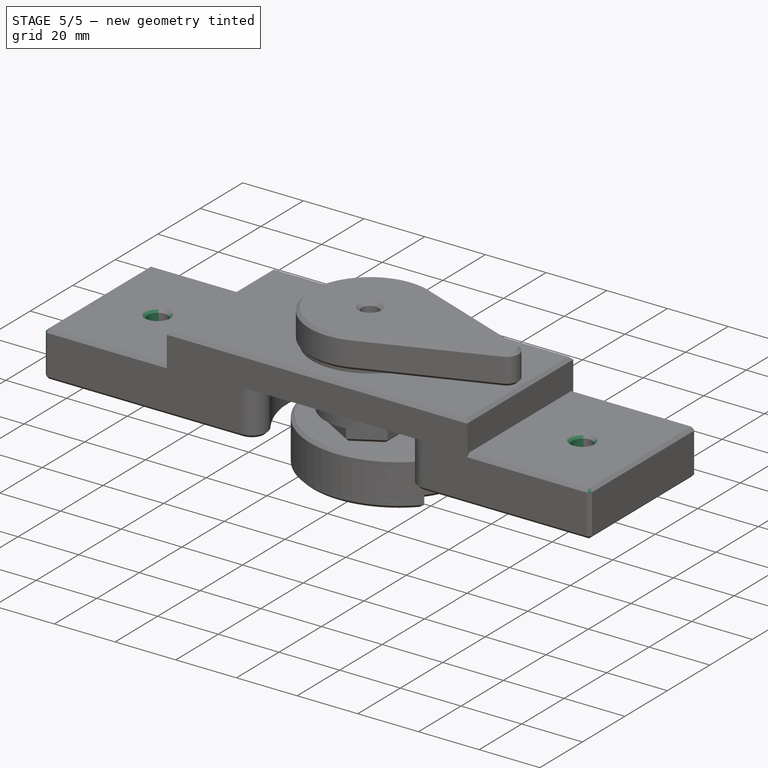
[diagram: stage 5 of 5 — iso view after this stage's code; geometry added in this stage tinted green]
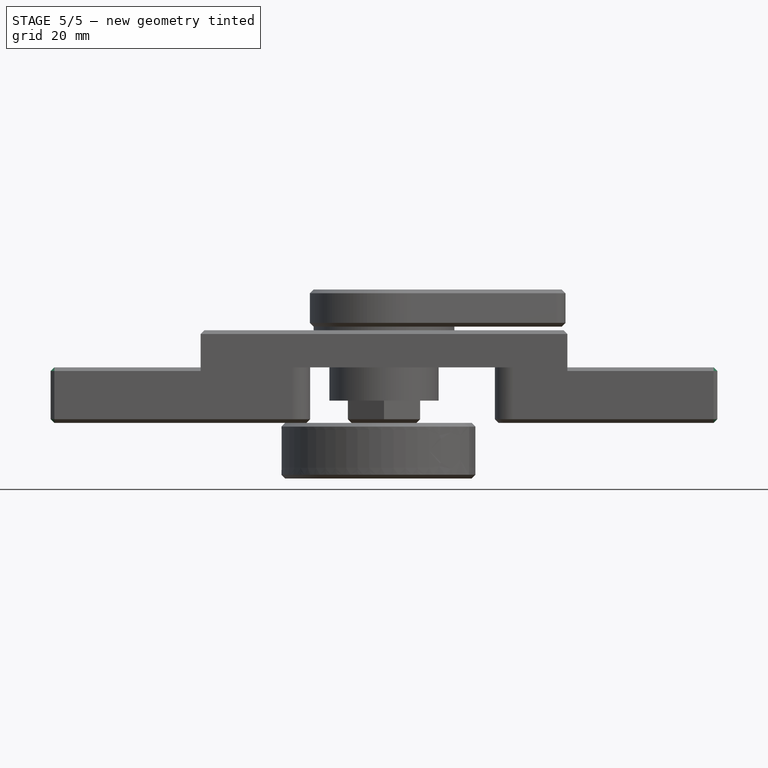
[diagram: stage 5 of 5 — front view after this stage's code; geometry added in this stage tinted green]
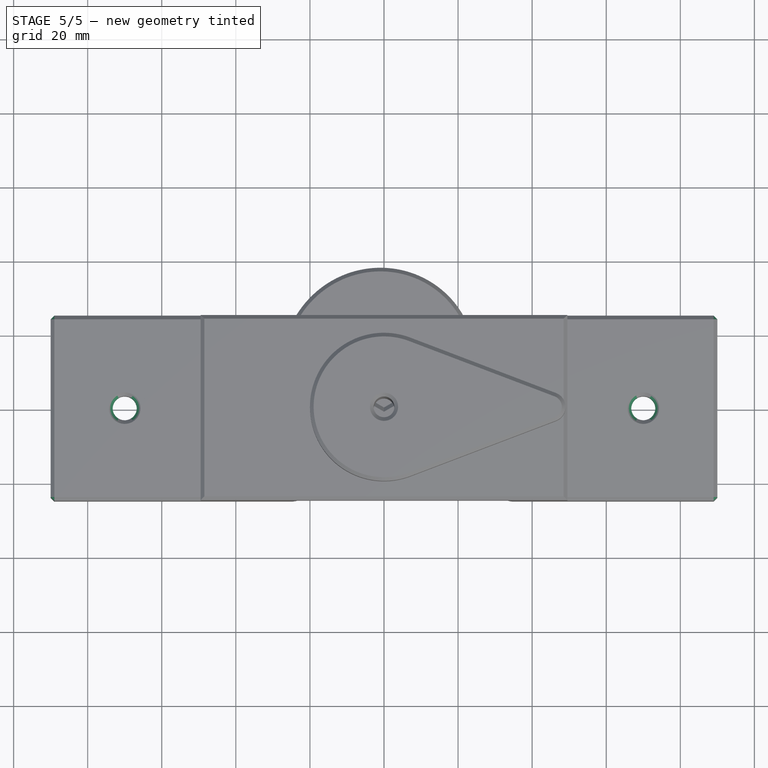
[diagram: stage 5 of 5 — top view after this stage's code; geometry added in this stage tinted green]
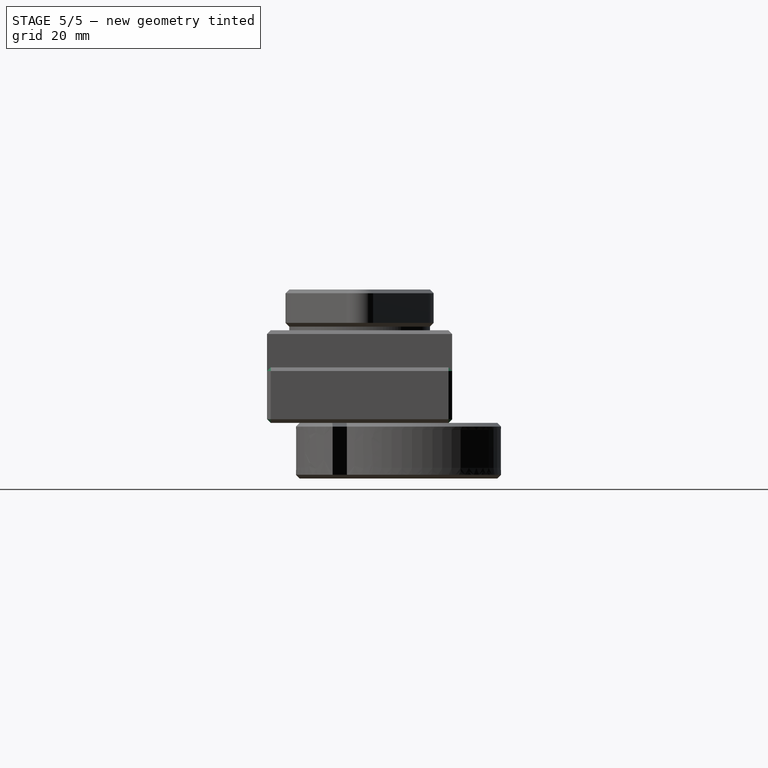
[diagram: stage 5 of 5 — right view after this stage's code; geometry added in this stage tinted green]
FEATURE [Sketcher::SketchObject] Sketch005
  ExternalGeometry = -> [Pocket]
  FullyConstrained = true
  MapMode = 5
  Placement = pos=(0,0,0) rot=(1,0,0;3.14159rad)
  Support = -> [Pocket]
  sketch-geometry (1):
    g0: Circle CenterX=5 CenterY=0 CenterZ=0 NormalX=0 NormalY=0 NormalZ=1 AngleXU=0 Radius=31
  constraints (2):
    c: Coincident(g0,g-3)
    c: Diameter(g0) = 62
FEATURE [PartDesign::Pocket] Pocket001
  BaseFeature = -> Pocket
  Direction = (0,0,1)
  Length = 15
  Length2 = 5
  Profile = -> Sketch005
  ReferenceAxis = -> Sketch005 [N_Axis]
  Suppressed = false
  Type = 0
FEATURE [Sketcher::SketchObject] Sketch006
  ExternalGeometry = -> [Sketch]
  FullyConstrained = true
  MapMode = 5
  Placement = pos=(0,0,15) rot=(0,0,1;0rad)
  Support = -> [Pocket001]
  sketch-geometry (3):
    g0: Circle CenterX=70 CenterY=0 CenterZ=0 NormalX=0 NormalY=0 NormalZ=1 AngleXU=0 Radius=3.25
    g1: Circle CenterX=-70 CenterY=0 CenterZ=0 NormalX=0 NormalY=0 NormalZ=1 AngleXU=0 Radius=3.25
    g2: GeomPoint X=70 Y=40 Z=0
  constraints (6):
    c: PointOnObject(g0,g-1)
    c: Equal(g1,g0)
    c: Symmetric(g1,g0,g-1)
    c: Symmetric(g-3,g-3,g2)
    c: Vertical(g0,g2)
    c: Diameter(g0) = 6.5
FEATURE [PartDesign::Pocket] Pocket002
  BaseFeature = -> Pocket001
  Direction = (0,0,-1)
  Length = 5
  Length2 = 5
  Profile = -> Sketch006
  ReferenceAxis = -> Sketch006 [N_Axis]
  Suppressed = false
  Type = 1
FEATURE [Sketcher::SketchObject] Sketch007
  ExternalGeometry = -> [Pocket002]
  FullyConstrained = true
  MapMode = 5
  Placement = pos=(0,0,0) rot=(1,0,0;3.14159rad)
  Support = -> [Pocket002]
  expr: Constraints[17] = 11.4 / sin(60)
  sketch-geometry (14):
    g0: LineSegment StartX=76.5818 StartY=0 StartZ=0 EndX=73.2909 EndY=5.7 EndZ=0
    g1: LineSegment StartX=73.2909 StartY=5.7 StartZ=0 EndX=66.7091 EndY=5.7 EndZ=0
    g2: LineSegment StartX=66.7091 StartY=5.7 StartZ=0 EndX=63.4182 EndY=0 EndZ=0
    g3: LineSegment StartX=63.4182 StartY=1e-16 StartZ=0 EndX=66.7091 EndY=-5.7 EndZ=0
    g4: LineSegment StartX=66.7091 StartY=-5.7 StartZ=0 EndX=73.2909 EndY=-5.7 EndZ=0
    g5: LineSegment StartX=73.2909 StartY=-5.7 StartZ=0 EndX=76.5818 EndY=2e-16 EndZ=0
    g6: Circle CenterX=70 CenterY=0 CenterZ=0 NormalX=0 NormalY=0 NormalZ=1 AngleXU=0 Radius=6.58179
    g7: LineSegment StartX=-66.7091 StartY=-5.7 StartZ=0 EndX=-63.4182 EndY=0 EndZ=0
    g8: LineSegment StartX=-63.4182 StartY=0 StartZ=0 EndX=-66.7091 EndY=5.7 EndZ=0
    g9: LineSegment StartX=-66.7091 StartY=5.7 StartZ=0 EndX=-73.2909 EndY=5.7 EndZ=0
    g10: LineSegment StartX=-73.2909 StartY=5.7 StartZ=0 EndX=-76.5818 EndY=-1e-16 EndZ=0
    g11: LineSegment StartX=-76.5818 StartY=-1e-16 StartZ=0 EndX=-73.2909 EndY=-5.7 EndZ=0
    g12: LineSegment StartX=-73.2909 StartY=-5.7 StartZ=0 EndX=-66.7091 EndY=-5.7 EndZ=0
    g13: Circle CenterX=-70 CenterY=0 CenterZ=0 NormalX=0 NormalY=0 NormalZ=1 AngleXU=0 Radius=6.58179
  constraints (32):
    c: Coincident(g0,g1)
    c: Coincident(g1,g2)
    c: Coincident(g2,g3)
    c: Coincident(g3,g4)
    c: Coincident(g4,g5)
    c: Coincident(g5,g0)
    c: Equal(g0, g1-g5) x5
    c: PointOnObject(g0,g6)
    c: PointOnObject(g1,g6)
    c: PointOnObject(g2,g6)
    c: PointOnObject(g3,g6)
    c: PointOnObject(g4,g6)
    c: PointOnObject(g5,g6)
    c: PointOnObject(g5,g-1) = 13.1636
    c: Diameter(g6) = 13.1636
    c: Coincident(g7,g8)
    c: Coincident(g8,g9)
    c: Coincident(g9,g10)
    c: Coincident(g10,g11)
    c: Coincident(g11,g12)
    c: Coincident(g12,g7)
    c: Equal(g7, g8-g12) x5
    c: PointOnObject(g7,g13)
    c: PointOnObject(g8,g13)
    c: PointOnObject(g9,g13)
    c: PointOnObject(g10,g13)
    c: PointOnObject(g11,g13)
    c: PointOnObject(g12,g13)
    c: PointOnObject(g7,g-1)
    c: Equal(g13,g6)
    c: Symmetric(g13,g6,g-1)
    c: Coincident(g6,g-3)
FEATURE [PartDesign::Pocket] Pocket003
  BaseFeature = -> Pocket002
  Direction = (0,0,1)
  Length = 4.5
  Length2 = 5
  Profile = -> Sketch007
  ReferenceAxis = -> Sketch007 [N_Axis]
  Refine = true
  Suppressed = false
  Type = 0
FEATURE [PartDesign::Fillet] Fillet
  Base = -> Pocket003 [Edge34,Edge32,Edge82,Edge83]
  BaseFeature = -> Pocket003
  Radius = 5
  SupportTransform = false
  Suppressed = false
  UseAllEdges = false
FEATURE [PartDesign::Chamfer] Chamfer
  Angle = 45
  Base = -> Fillet [Face6,Face2,Edge74,Face1,Face14,Edge83,Edge98,Edge79,Edge81,Edge76,Edge78,Edge77,Edge30,Edge71]
  BaseFeature = -> Fillet
  ChamferType = 0
  FlipDirection = false
  Size = 1
  Size2 = 1
  SupportTransform = false
  Suppressed = false
  UseAllEdges = false
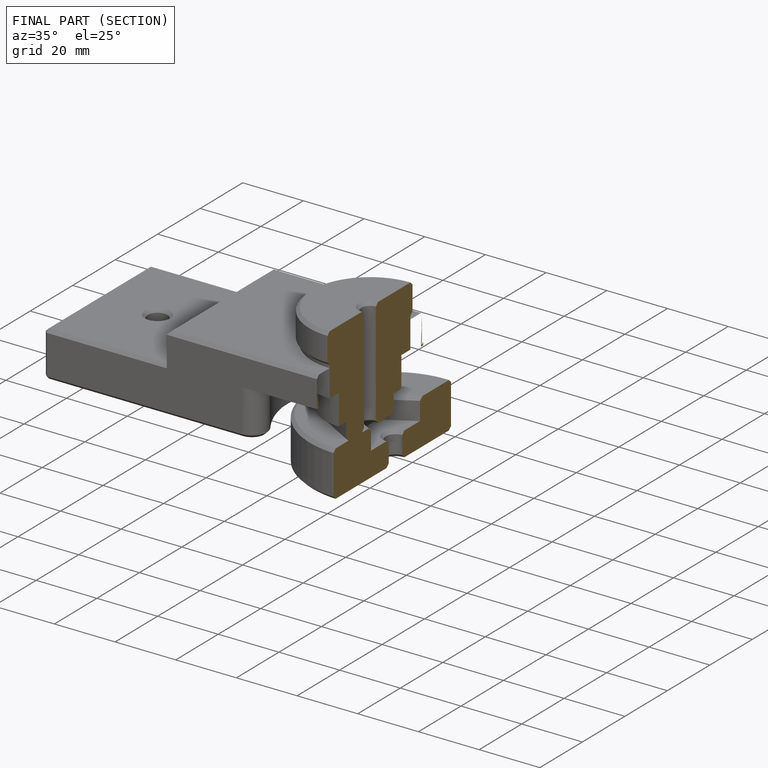
[diagram: finished part — half-section view (interior)]
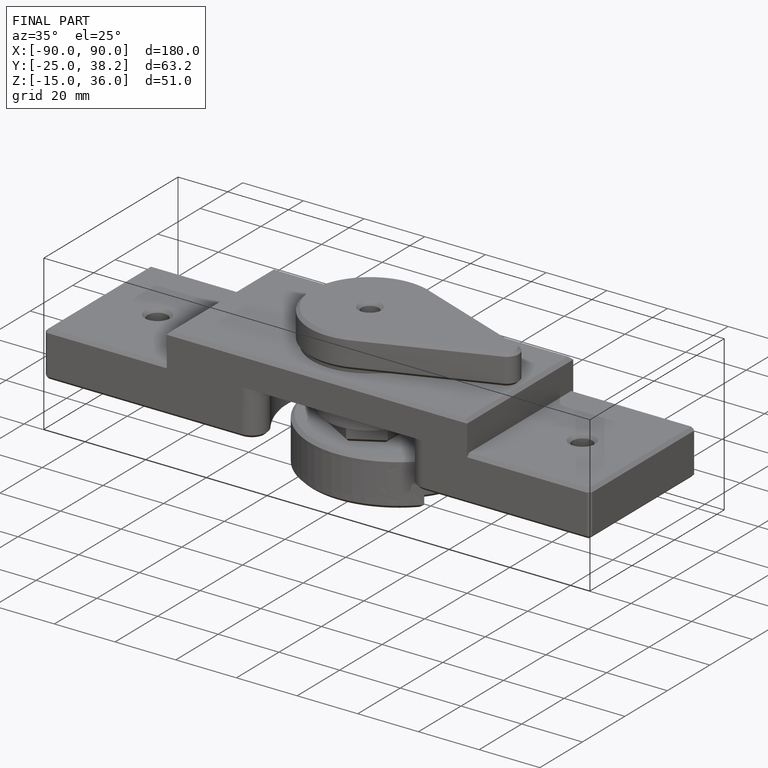
[diagram: finished part — iso view with bounding-box wireframe]
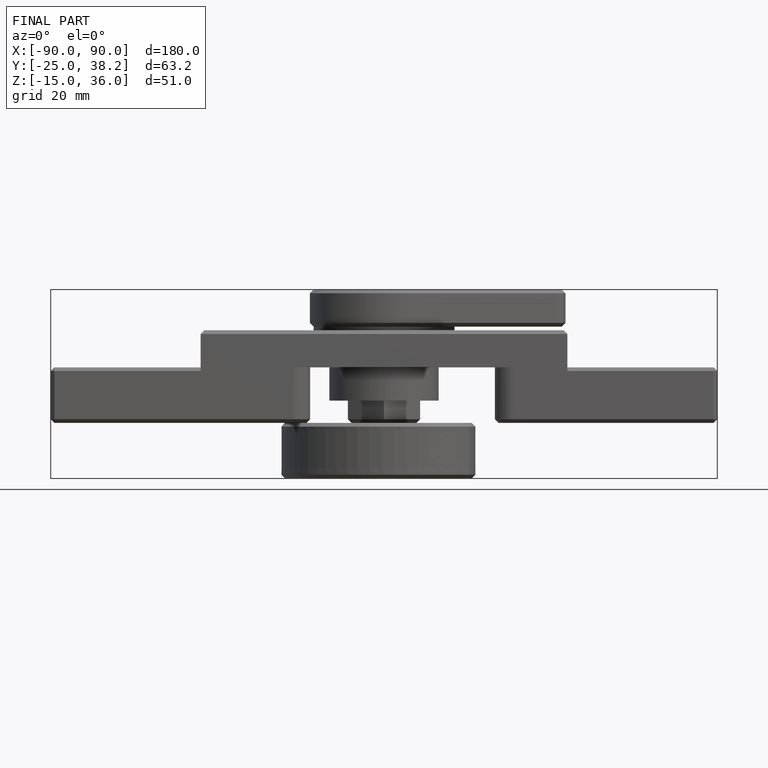
[diagram: finished part — front view with bounding-box wireframe]
